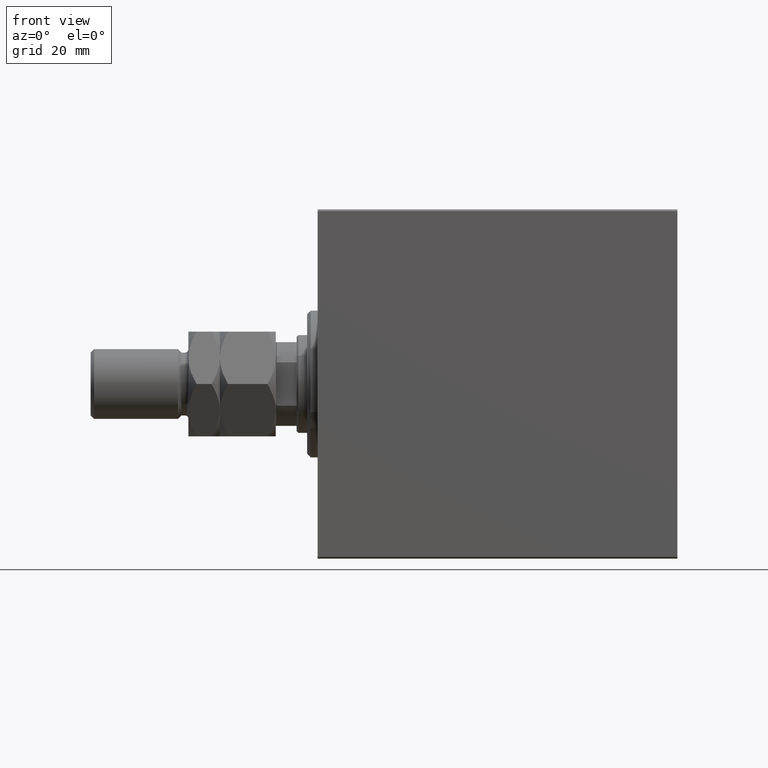
[diagram: clean part render]
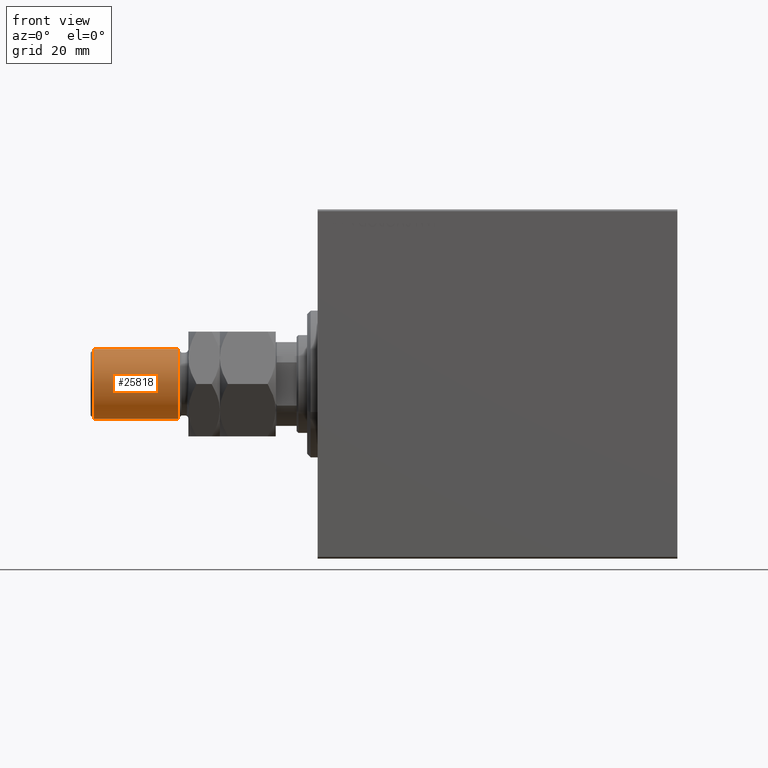
[diagram: same view with one face highlighted and labeled with its STEP entity id]
A machine part, front view. The second image highlights one B-rep face of the part: STEP entity #25818.
In plain terms, the highlighted cylindrical surface (edge-blend (fillet) strip) has radius 10 mm, axis along (1, -0, -0).
Its self-contained STEP definition (entity closure, byte-faithful):
#942 = CARTESIAN_POINT ( 'NONE',  ( 0.000000000000000000, 0.000000000000000000, 52.00000000000004974 ) ) ;
#1019 = DIRECTION ( 'NONE',  ( -0.000000000000000000, -0.000000000000000000, -1.000000000000000000 ) ) ;
#1160 = DIRECTION ( 'NONE',  ( 0.000000000000000000, 0.000000000000000000, -1.000000000000000000 ) ) ;
#1832 = CARTESIAN_POINT ( 'NONE',  ( 10.00000000000000000, 1.224646799147353059E-15, 52.00000000000004974 ) ) ;
#3762 = CARTESIAN_POINT ( 'NONE',  ( -10.00000000000000000, 0.000000000000000000, 52.00000000000004974 ) ) ;
#3933 = AXIS2_PLACEMENT_3D ( 'NONE', #14806, #28905, #44145 ) ;
#4363 = CIRCLE ( 'NONE', #17617, 10.00000000000000000 ) ;
#4751 = EDGE_CURVE ( 'NONE', #22901, #13183, #4363, .T. ) ;
#6168 = EDGE_CURVE ( 'NONE', #22901, #24264, #12210, .T. ) ;
#6677 = ORIENTED_EDGE ( 'NONE', *, *, #6168, .F. ) ;
#8100 = DIRECTION ( 'NONE',  ( 1.000000000000000000, 0.000000000000000000, 0.000000000000000000 ) ) ;
#12210 = LINE ( 'NONE', #40865, #24301 ) ;
#13183 = VERTEX_POINT ( 'NONE', #3762 ) ;
#13866 = VECTOR ( 'NONE', #28957, 1000.000000000000000 ) ;
#14806 = CARTESIAN_POINT ( 'NONE',  ( 0.000000000000000000, 0.000000000000000000, 28.00000000000002487 ) ) ;
#14877 = CYLINDRICAL_SURFACE ( 'NONE', #24130, 10.00000000000000000 ) ;
#17617 = AXIS2_PLACEMENT_3D ( 'NONE', #942, #1160, #8100 ) ;
#18201 = VERTEX_POINT ( 'NONE', #43302 ) ;
#18329 = CARTESIAN_POINT ( 'NONE',  ( -10.00000000000000000, 0.000000000000000000, 53.00000000000000711 ) ) ;
#20644 = EDGE_CURVE ( 'NONE', #18201, #24264, #37151, .T. ) ;
#22901 = VERTEX_POINT ( 'NONE', #1832 ) ;
#24130 = AXIS2_PLACEMENT_3D ( 'NONE', #28743, #1019, #35457 ) ;
#24264 = VERTEX_POINT ( 'NONE', #38039 ) ;
#24301 = VECTOR ( 'NONE', #36927, 1000.000000000000000 ) ;
#25483 = LINE ( 'NONE', #18329, #13866 ) ;
#25818 = ADVANCED_FACE ( 'NONE', ( #32213 ), #14877, .T. ) ;
#28743 = CARTESIAN_POINT ( 'NONE',  ( 0.000000000000000000, 0.000000000000000000, 53.00000000000000711 ) ) ;
#28905 = DIRECTION ( 'NONE',  ( -0.000000000000000000, -0.000000000000000000, 1.000000000000000000 ) ) ;
#28957 = DIRECTION ( 'NONE',  ( -0.000000000000000000, -0.000000000000000000, -1.000000000000000000 ) ) ;
#30082 = EDGE_CURVE ( 'NONE', #13183, #18201, #25483, .T. ) ;
#32213 = FACE_OUTER_BOUND ( 'NONE', #39828, .T. ) ;
#35457 = DIRECTION ( 'NONE',  ( -1.000000000000000000, 0.000000000000000000, 0.000000000000000000 ) ) ;
#36842 = ORIENTED_EDGE ( 'NONE', *, *, #20644, .T. ) ;
#36927 = DIRECTION ( 'NONE',  ( -0.000000000000000000, -0.000000000000000000, -1.000000000000000000 ) ) ;
#37151 = CIRCLE ( 'NONE', #3933, 10.00000000000000000 ) ;
#38039 = CARTESIAN_POINT ( 'NONE',  ( 10.00000000000000000, 1.224646799147353059E-15, 28.00000000000002487 ) ) ;
#39828 = EDGE_LOOP ( 'NONE', ( #6677, #44731, #42148, #36842 ) ) ;
#40865 = CARTESIAN_POINT ( 'NONE',  ( 10.00000000000000000, 1.224646799147353059E-15, 53.00000000000000711 ) ) ;
#42148 = ORIENTED_EDGE ( 'NONE', *, *, #30082, .T. ) ;
#43302 = CARTESIAN_POINT ( 'NONE',  ( -10.00000000000000000, 0.000000000000000000, 28.00000000000002487 ) ) ;
#44145 = DIRECTION ( 'NONE',  ( 1.000000000000000000, 0.000000000000000000, 0.000000000000000000 ) ) ;
#44731 = ORIENTED_EDGE ( 'NONE', *, *, #4751, .T. ) ;